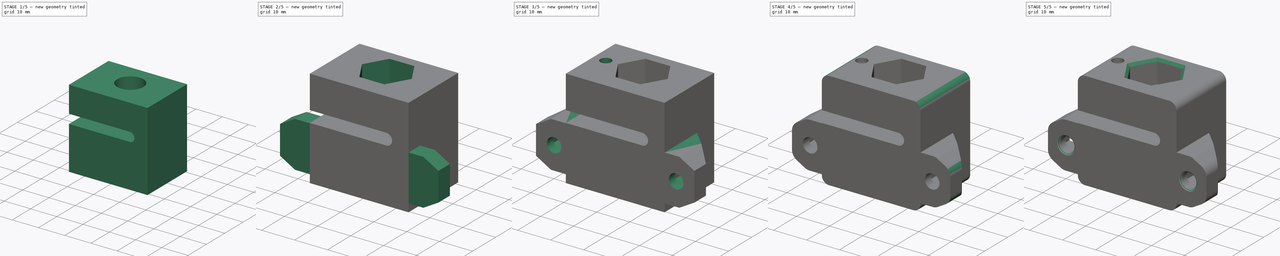
[diagram: build sequence overview — one tinted view per stage of 5, left to right]
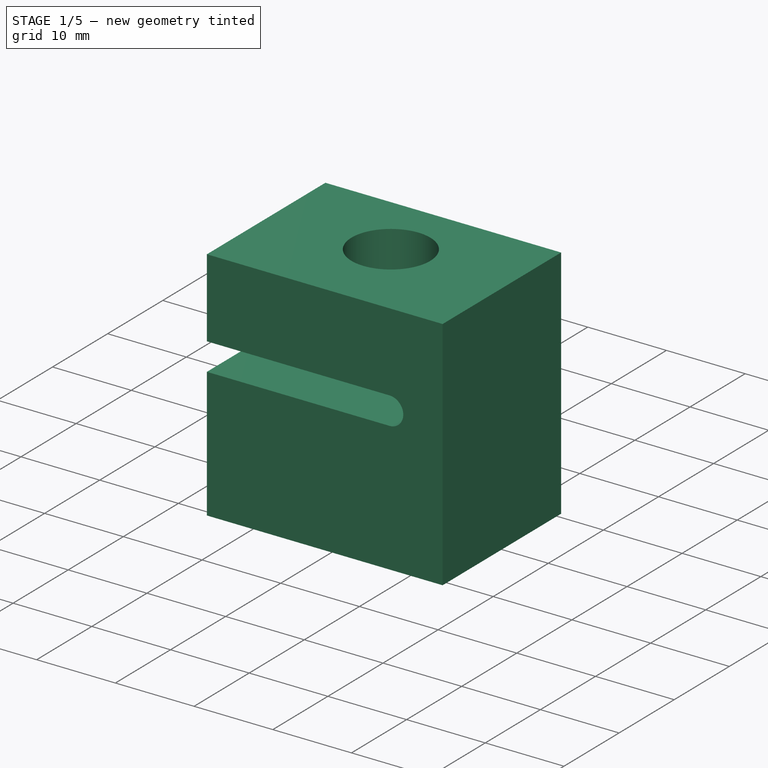
[diagram: stage 1 of 5 — iso view after this stage's code; geometry added in this stage tinted green]
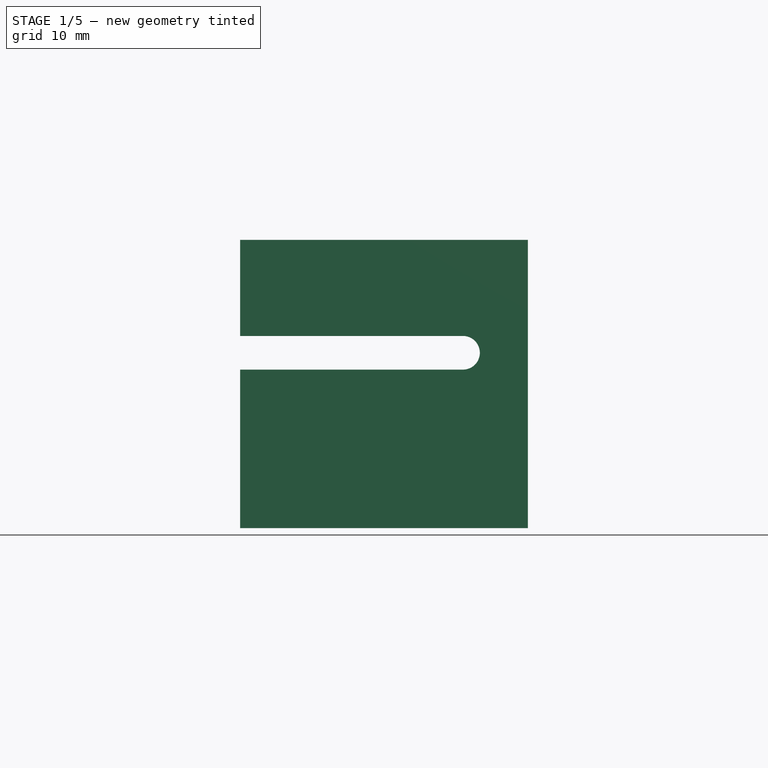
[diagram: stage 1 of 5 — front view after this stage's code; geometry added in this stage tinted green]
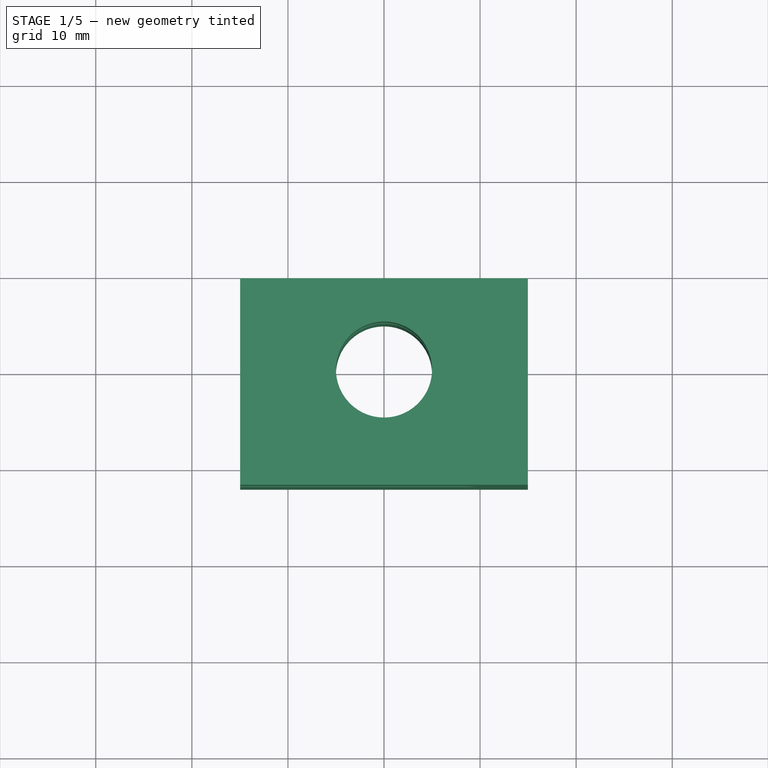
[diagram: stage 1 of 5 — top view after this stage's code; geometry added in this stage tinted green]
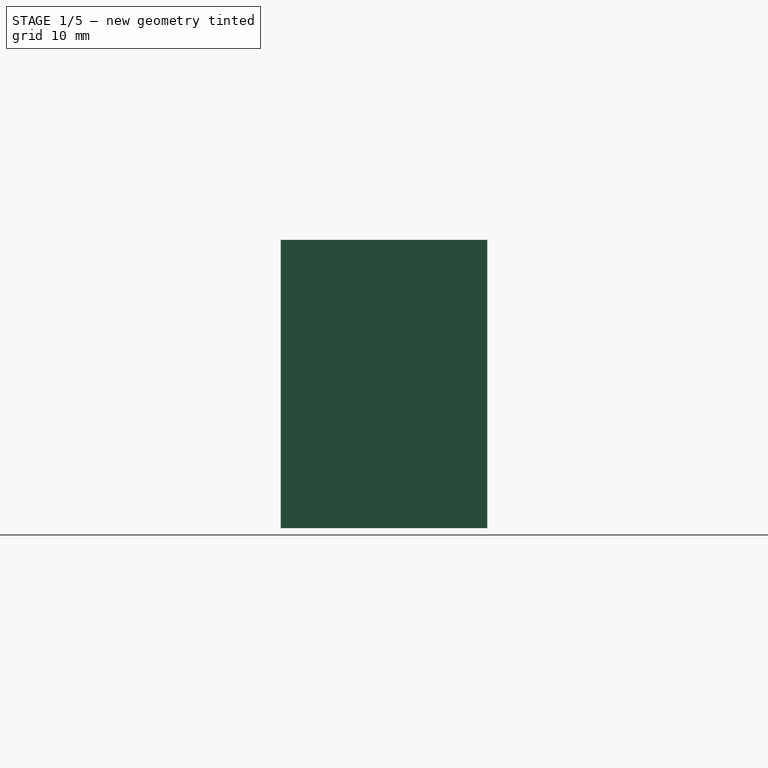
[diagram: stage 1 of 5 — right view after this stage's code; geometry added in this stage tinted green]
FCSTD DOCUMENT  (FreeCAD 0.17R13519 (Git))
Label: Backlash Nut Z-Axis
License: All rights reserved
LicenseURL: http://de.wikipedia.org/wiki/Alle_Rechte_vorbehalten
objects: Sketcher::SketchObject×10, PartDesign::Pocket×8, PartDesign::Chamfer×4, PartDesign::Pad×2, PartDesign::Fillet×2
note: 36 computed .brp shape members not serialized (recipe doc carries the construction recipe); baked Part::Feature solids carry a one-line shape summary decoded from their .brp

FEATURE [Sketcher::SketchObject] Sketch
  MapMode = 5
  sketch-geometry (12):
    g0: LineSegment [constr] StartX=-50 StartY=-12 StartZ=0 EndX=50 EndY=-12 EndZ=0
    g1: LineSegment [constr] StartX=3.75278 StartY=-6.5 StartZ=0 EndX=7.50555 EndY=0 EndZ=0
    g2: LineSegment [constr] StartX=7.50555 StartY=0 StartZ=0 EndX=3.75278 EndY=6.5 EndZ=0
    g3: LineSegment [constr] StartX=3.75278 StartY=6.5 StartZ=0 EndX=-3.75278 EndY=6.5 EndZ=0
    g4: LineSegment [constr] StartX=-3.75278 StartY=6.5 StartZ=0 EndX=-7.50555 EndY=0 EndZ=0
    g5: LineSegment [constr] StartX=-7.50555 StartY=0 StartZ=0 EndX=-3.75278 EndY=-6.5 EndZ=0
    g6: LineSegment [constr] StartX=-3.75278 StartY=-6.5 StartZ=0 EndX=3.75278 EndY=-6.5 EndZ=0
    g7: Circle [constr] CenterX=0 CenterY=0 CenterZ=0 NormalX=0 NormalY=0 NormalZ=1 AngleXU=0 Radius=7.50555
    g8: LineSegment StartX=-14.975 StartY=9.5 StartZ=0 EndX=14.975 EndY=9.5 EndZ=0
    g9: LineSegment StartX=14.975 StartY=9.5 StartZ=0 EndX=14.975 EndY=-12 EndZ=0
    g10: LineSegment StartX=14.975 StartY=-12 StartZ=0 EndX=-14.975 EndY=-12 EndZ=0
    g11: LineSegment StartX=-14.975 StartY=-12 StartZ=0 EndX=-14.975 EndY=9.5 EndZ=0
  constraints (31):
    c: DistanceY(g0,g-1) = 12
    c: Symmetric(g0,g0,g-2)
    c: DistanceX(g0,g0) = 100
    c: Coincident(g1,g2)
    c: Coincident(g2,g3)
    c: Coincident(g3,g4)
    c: Coincident(g4,g5)
    c: Coincident(g5,g6)
    c: Coincident(g6,g1)
    c: Equal(g1, g2-g6) x5
    c: PointOnObject(g1,g7)
    c: PointOnObject(g2,g7)
    c: PointOnObject(g3,g7)
    c: PointOnObject(g4,g7)
    c: PointOnObject(g5,g7)
    c: PointOnObject(g6,g7)
    c: Horizontal(g6)
    c: Coincident(g-1,g7)
    c: Distance(g1,g2) = 13
    c: Coincident(g8,g9)
    c: Coincident(g9,g10)
    c: Coincident(g10,g11)
    c: Coincident(g11,g8)
    c: Horizontal(g8)
    c: Horizontal(g10)
    c: Vertical(g9)
    c: Vertical(g11)
    c: Symmetric(g8,g8,g-2)
    c: PointOnObject(g9,g0)
    c: DistanceY(g2,g8) = 3
    c: DistanceX(g-1,g9) = 14.975
FEATURE [PartDesign::Pad] Pad
  Length = 30
  Length2 = 100
  Midplane = true
  Profile = -> Sketch
  Type = 0
FEATURE [Sketcher::SketchObject] Sketch001
  ExternalGeometry = -> [Pad]
  MapMode = 5
  Placement = pos=(0,9.5,0) rot=(0,0.707107,0.707107;3.14159rad)
  Support = -> [Pad]
  sketch-geometry (7):
    g0: LineSegment [constr] StartX=14.975 StartY=5 StartZ=0 EndX=-9.975 EndY=5 EndZ=0
    g1: LineSegment [constr] StartX=-9.975 StartY=5 StartZ=0 EndX=-9.975 EndY=1.5 EndZ=0
    g2: LineSegment [constr] StartX=-9.975 StartY=1.5 StartZ=0 EndX=14.975 EndY=1.5 EndZ=0
    g3: LineSegment StartX=14.975 StartY=1.5 StartZ=0 EndX=14.975 EndY=5 EndZ=0
    g4: ArcOfCircle CenterX=-8.225 CenterY=3.25 CenterZ=0 NormalX=0 NormalY=0 NormalZ=1 AngleXU=0 Radius=1.75 StartAngle=1.57079 EndAngle=4.7124
    g5: LineSegment StartX=14.975 StartY=5 StartZ=0 EndX=-8.22498 EndY=5 EndZ=0
    g6: LineSegment StartX=14.975 StartY=1.5 StartZ=0 EndX=-8.22498 EndY=1.5 EndZ=0
  constraints (21):
    c: Coincident(g0,g1)
    c: Coincident(g1,g2)
    c: Coincident(g2,g3)
    c: Coincident(g3,g0)
    c: Horizontal(g0)
    c: Horizontal(g2)
    c: Vertical(g1)
    c: Vertical(g3)
    c: DistanceX(g-3,g0) = 5
    c: DistanceY(g0,g-3) = 10
    c: PointOnObject(g-3,g3)
    c: DistanceY(g3,g3) = 3.5
    c: PointOnObject(g4,g0)
    c: PointOnObject(g4,g2)
    c: Tangent(g4,g0)
    c: Tangent(g4,g2)
    c: Coincident(g5,g0)
    c: Coincident(g6,g2)
    c: Coincident(g4,g6)
    c: Coincident(g4,g5)
    c: Tangent(g1,g4)
FEATURE [PartDesign::Pocket] Pocket
  Length = 5
  Length2 = 100
  Profile = -> Sketch001
  Type = 1
FEATURE [Sketcher::SketchObject] Sketch002
  MapMode = 5
  Placement = pos=(0,0,15) rot=(0,0,1;0rad)
  Support = -> [Pocket]
  sketch-geometry (1):
    g0: Circle CenterX=0 CenterY=0 CenterZ=0 NormalX=0 NormalY=0 NormalZ=1 AngleXU=0 Radius=5
  constraints (2):
    c: Coincident(g0,g-1)
    c: Radius(g0) = 5
FEATURE [PartDesign::Pocket] Pocket001
  Length = 5
  Length2 = 100
  Profile = -> Sketch002
  Type = 1
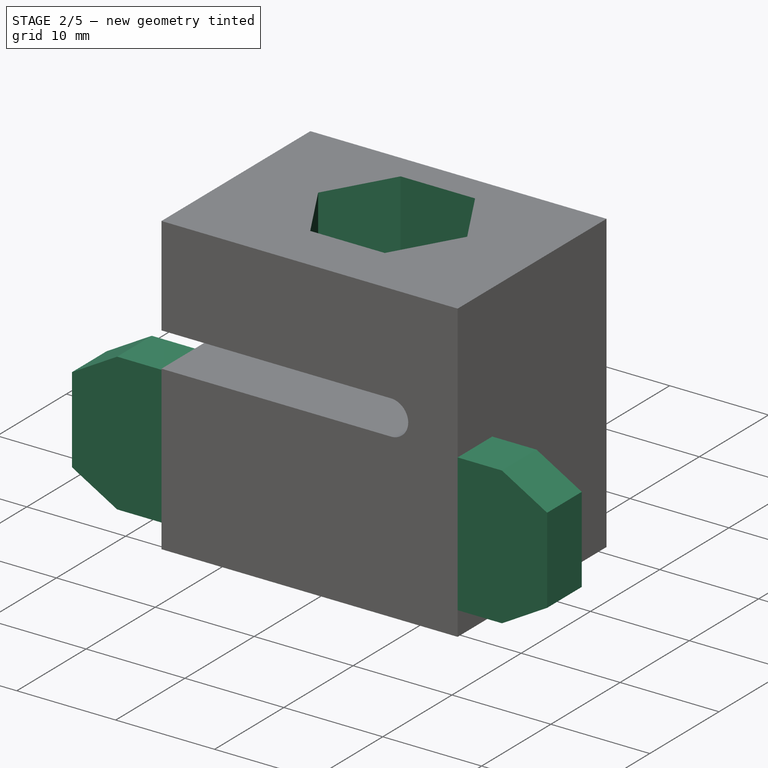
[diagram: stage 2 of 5 — iso view after this stage's code; geometry added in this stage tinted green]
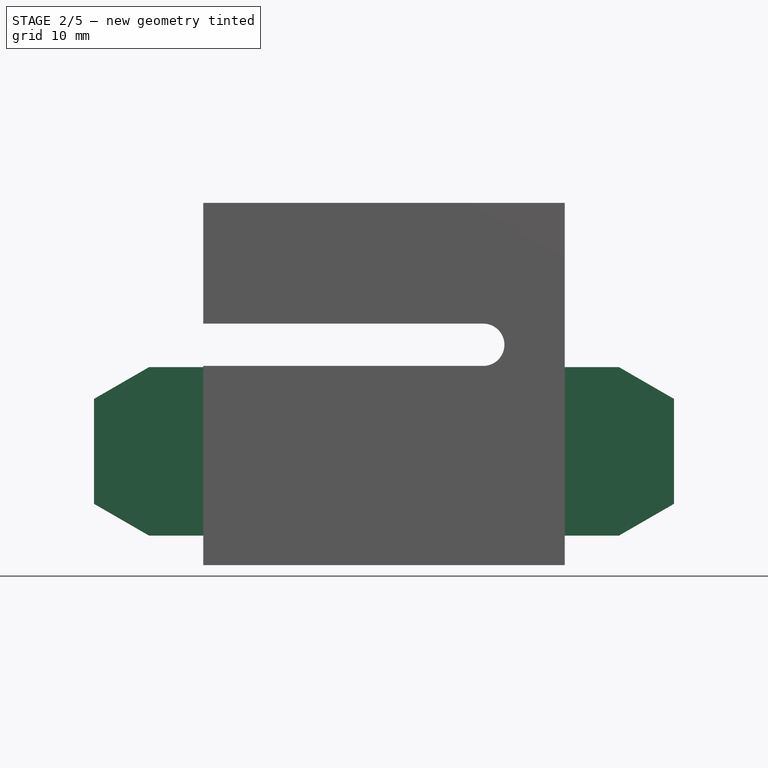
[diagram: stage 2 of 5 — front view after this stage's code; geometry added in this stage tinted green]
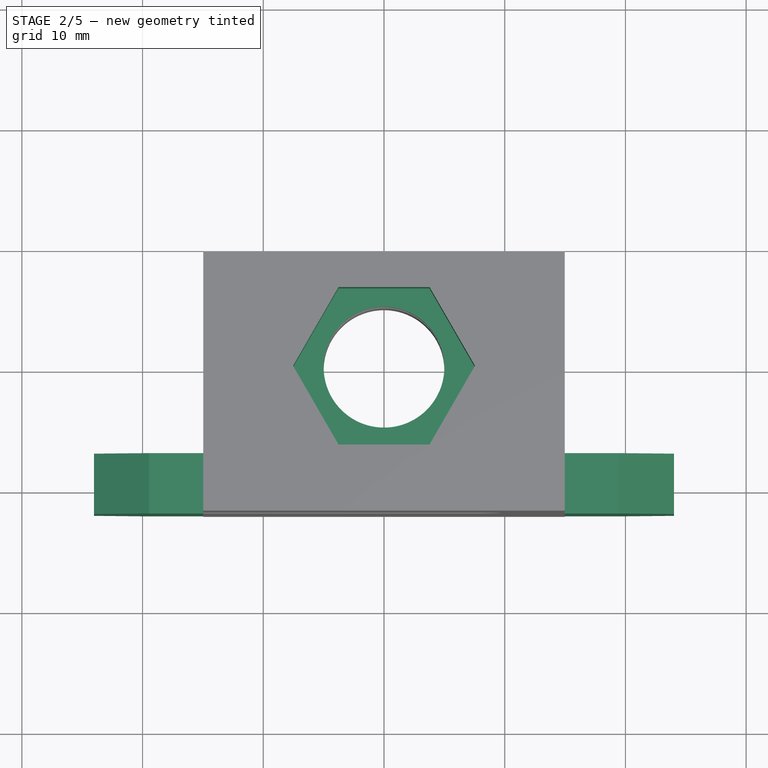
[diagram: stage 2 of 5 — top view after this stage's code; geometry added in this stage tinted green]
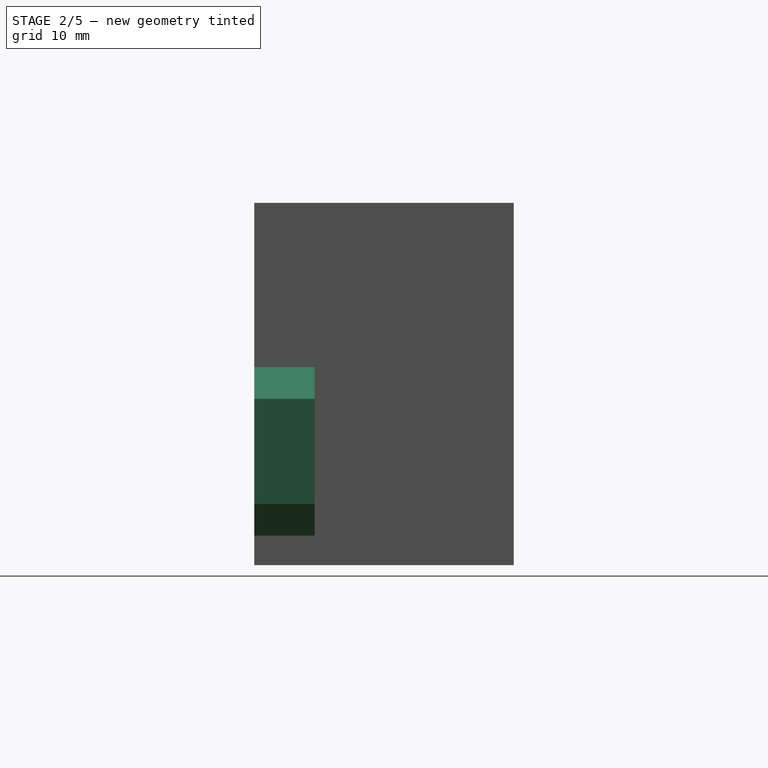
[diagram: stage 2 of 5 — right view after this stage's code; geometry added in this stage tinted green]
FEATURE [Sketcher::SketchObject] Sketch003
  MapMode = 5
  Placement = pos=(0,0,15) rot=(0,0,1;0rad)
  Support = -> [Pocket001]
  sketch-geometry (7):
    g0: LineSegment StartX=7.53442 StartY=-1e-12 StartZ=0 EndX=3.76721 EndY=6.525 EndZ=0
    g1: LineSegment StartX=3.76721 StartY=6.525 StartZ=0 EndX=-3.76721 EndY=6.525 EndZ=0
    g2: LineSegment StartX=-3.76721 StartY=6.525 StartZ=0 EndX=-7.53442 EndY=-1e-12 EndZ=0
    g3: LineSegment StartX=-7.53442 StartY=-1e-12 StartZ=0 EndX=-3.76721 EndY=-6.525 EndZ=0
    g4: LineSegment StartX=-3.76721 StartY=-6.525 StartZ=0 EndX=3.76721 EndY=-6.525 EndZ=0
    g5: LineSegment StartX=3.76721 StartY=-6.525 StartZ=0 EndX=7.53442 EndY=-1e-12 EndZ=0
    g6: Circle [constr] CenterX=0 CenterY=0 CenterZ=0 NormalX=0 NormalY=0 NormalZ=1 AngleXU=0 Radius=7.53442
  constraints (16):
    c: Coincident(g0,g1)
    c: Coincident(g1,g2)
    c: Coincident(g2,g3)
    c: Coincident(g3,g4)
    c: Coincident(g4,g5)
    c: Coincident(g5,g0)
    c: Equal(g0, g1-g5) x5
    c: PointOnObject(g0,g6)
    c: PointOnObject(g1,g6)
    c: PointOnObject(g2,g6)
    c: PointOnObject(g3,g6)
    c: PointOnObject(g4,g6)
    c: PointOnObject(g5,g6)
    c: Coincident(g6,g-1)
    c: Horizontal(g4)
    c: Distance(g4,g0) = 13.05
FEATURE [PartDesign::Pocket] Pocket002
  Length = 7
  Length2 = 100
  Profile = -> Sketch003
  Type = 0
FEATURE [Sketcher::SketchObject] Sketch004
  MapMode = 5
  Placement = pos=(0,0,-15) rot=(1,0,0;3.14159rad)
  Support = -> [Pocket002]
  sketch-geometry (7):
    g0: LineSegment StartX=7.53442 StartY=0 StartZ=0 EndX=3.76721 EndY=6.525 EndZ=0
    g1: LineSegment StartX=3.76721 StartY=6.525 StartZ=0 EndX=-3.76721 EndY=6.525 EndZ=0
    g2: LineSegment StartX=-3.76721 StartY=6.525 StartZ=0 EndX=-7.53442 EndY=0 EndZ=0
    g3: LineSegment StartX=-7.53442 StartY=0 StartZ=0 EndX=-3.76721 EndY=-6.525 EndZ=0
    g4: LineSegment StartX=-3.76721 StartY=-6.525 StartZ=0 EndX=3.76721 EndY=-6.525 EndZ=0
    g5: LineSegment StartX=3.76721 StartY=-6.525 StartZ=0 EndX=7.53442 EndY=0 EndZ=0
    g6: Circle [constr] CenterX=0 CenterY=0 CenterZ=0 NormalX=0 NormalY=0 NormalZ=1 AngleXU=0 Radius=7.53442
  constraints (16):
    c: Coincident(g0,g1)
    c: Coincident(g1,g2)
    c: Coincident(g2,g3)
    c: Coincident(g3,g4)
    c: Coincident(g4,g5)
    c: Coincident(g5,g0)
    c: Equal(g0, g1-g5) x5
    c: PointOnObject(g0,g6)
    c: PointOnObject(g1,g6)
    c: PointOnObject(g2,g6)
    c: PointOnObject(g3,g6)
    c: PointOnObject(g4,g6)
    c: PointOnObject(g5,g6)
    c: Horizontal(g4)
    c: Coincident(g6,g-1)
    c: Distance(g4,g0) = 13.05
FEATURE [PartDesign::Pocket] Pocket003
  Length = 7
  Length2 = 100
  Profile = -> Sketch004
  Type = 0
FEATURE [Sketcher::SketchObject] Sketch005
  ExternalGeometry = -> [Pocket003]
  MapMode = 5
  Placement = pos=(0,-12,0) rot=(1,0,0;1.5708rad)
  Support = -> [Pocket003]
  sketch-geometry (21):
    g0: LineSegment [constr] StartX=-22.025 StartY=-7.61548 StartZ=0 EndX=-18.5 EndY=-9.65064 EndZ=0
    g1: LineSegment [constr] StartX=-18.5 StartY=-9.65064 StartZ=0 EndX=-14.975 EndY=-7.61548 EndZ=0
    g2: LineSegment [constr] StartX=-14.975 StartY=-7.61548 StartZ=0 EndX=-14.975 EndY=-3.54516 EndZ=0
    g3: LineSegment [constr] StartX=-14.975 StartY=-3.54516 StartZ=0 EndX=-18.5 EndY=-1.51 EndZ=0
    g4: LineSegment [constr] StartX=-18.5 StartY=-1.51 StartZ=0 EndX=-22.025 EndY=-3.54516 EndZ=0
    g5: LineSegment [constr] StartX=-22.025 StartY=-3.54516 StartZ=0 EndX=-22.025 EndY=-7.61548 EndZ=0
    g6: Circle [constr] CenterX=-18.5 CenterY=-5.58032 CenterZ=0 NormalX=0 NormalY=0 NormalZ=1 AngleXU=0 Radius=4.07032
    g7: LineSegment StartX=-14.975 StartY=1.4 StartZ=0 EndX=-19.4597 EndY=1.4 EndZ=0
    g8: LineSegment StartX=-19.4597 StartY=1.4 StartZ=0 EndX=-24.025 EndY=-1.23576 EndZ=0
    g9: LineSegment StartX=-24.025 StartY=-1.23576 StartZ=0 EndX=-24.025 EndY=-9.92488 EndZ=0
    g10: LineSegment StartX=-24.025 StartY=-9.92488 StartZ=0 EndX=-19.4597 EndY=-12.5606 EndZ=0
    g11: LineSegment StartX=-19.4597 StartY=-12.5606 StartZ=0 EndX=-14.975 EndY=-12.5606 EndZ=0
    g12: LineSegment StartX=-14.975 StartY=-12.5606 StartZ=0 EndX=-14.975 EndY=1.4 EndZ=0
    g13: LineSegment [constr] StartX=-20 StartY=1.08808 StartZ=0 EndX=-18.5 EndY=-1.51 EndZ=0
    g14: LineSegment [constr] StartX=-24.025 StartY=-5.58032 StartZ=0 EndX=-22.025 EndY=-5.58032 EndZ=0
    g15: LineSegment StartX=14.975 StartY=1.4 StartZ=0 EndX=14.975 EndY=-12.5606 EndZ=0
    g16: LineSegment StartX=14.975 StartY=-12.5606 StartZ=0 EndX=19.4597 EndY=-12.5606 EndZ=0
    g17: LineSegment StartX=19.4597 StartY=-12.5606 StartZ=0 EndX=24.025 EndY=-9.92488 EndZ=0
    g18: LineSegment StartX=24.025 StartY=-9.92488 StartZ=0 EndX=24.025 EndY=-1.23576 EndZ=0
    g19: LineSegment StartX=24.025 StartY=-1.23576 StartZ=0 EndX=19.4597 EndY=1.4 EndZ=0
    g20: LineSegment StartX=19.4597 StartY=1.4 StartZ=0 EndX=14.975 EndY=1.4 EndZ=0
  constraints (58):
    c: Coincident(g0,g1)
    c: Coincident(g1,g2)
    c: Coincident(g2,g3)
    c: Coincident(g3,g4)
    c: Coincident(g4,g5)
    c: Coincident(g5,g0)
    c: Equal(g0, g1-g5) x5
    c: PointOnObject(g0,g6)
    c: PointOnObject(g1,g6)
    c: PointOnObject(g2,g6)
    c: PointOnObject(g3,g6)
    c: PointOnObject(g4,g6)
    c: PointOnObject(g5,g6)
    c: Vertical(g2)
    c: Distance(g1,g0) = 7.05
    c: DistanceY(g3,g-3) = 3.01
    c: DistanceX(g6,g-1) = 18.5
    c: Coincident(g7,g8)
    c: Coincident(g8,g9)
    c: Vertical(g9)
    c: Coincident(g9,g10)
    c: Coincident(g10,g11)
    c: Coincident(g11,g12)
    c: Parallel(g0,g10)
    c: Parallel(g4,g8)
    c: Horizontal(g7)
    c: Horizontal(g11)
    c: Coincident(g13,g3)
    c: PointOnObject(g13,g8)
    c: Distance(g13) = 3
    c: Perpendicular(g8,g13)
    c: PointOnObject(g14,g5)
    c: PointOnObject(g14,g9)
    c: PointOnObject(g6,g14)
    c: Horizontal(g14)
    c: Symmetric(g7,g10,g14)
    c: Vertical(g12)
    c: Vertical(g15)
    c: Coincident(g15,g16)
    c: Horizontal(g16)
    c: Coincident(g16,g17)
    c: Coincident(g17,g18)
    c: Vertical(g18)
    c: Coincident(g18,g19)
    c: Coincident(g19,g20)
    c: Horizontal(g20)
    c: Coincident(g15,g20)
    c: Parallel(g10,g19)
    c: Parallel(g8,g17)
    c: Equal(g16,g11)
    c: Equal(g20,g16)
    c: Equal(g9,g18)
    c: Symmetric(g11,g15,g-2)
    c: Equal(g12,g15)
    c: Coincident(g7,g12)
    c: DistanceY(g7,g-3) = 0.1
    c: PointOnObject(g7,g-3)
    c: DistanceX(g14,g14) = 2
FEATURE [PartDesign::Pad] Pad001
  Length = 5
  Length2 = 100
  Profile = -> Sketch005
  Reversed = true
  Type = 0
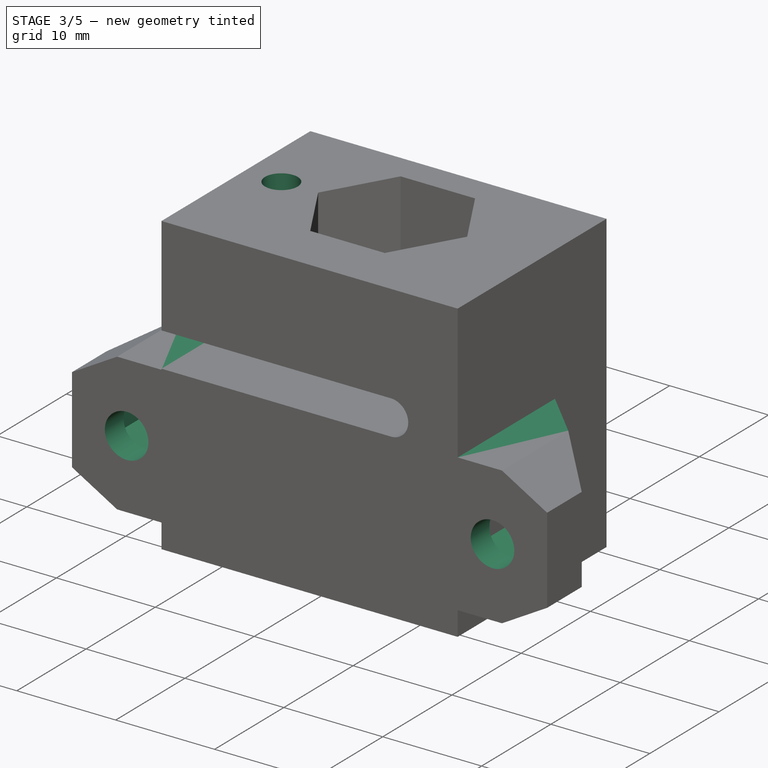
[diagram: stage 3 of 5 — iso view after this stage's code; geometry added in this stage tinted green]
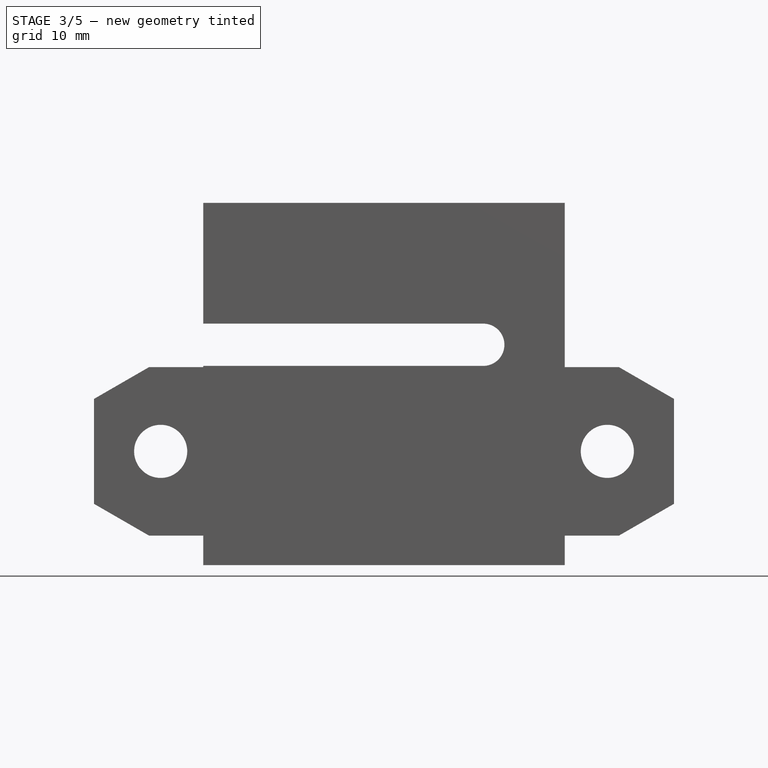
[diagram: stage 3 of 5 — front view after this stage's code; geometry added in this stage tinted green]
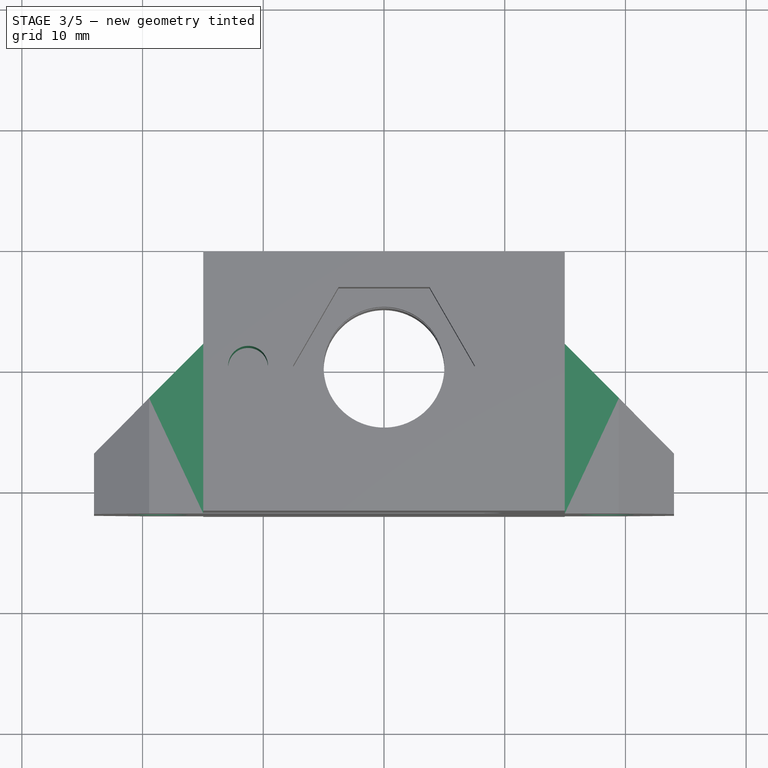
[diagram: stage 3 of 5 — top view after this stage's code; geometry added in this stage tinted green]
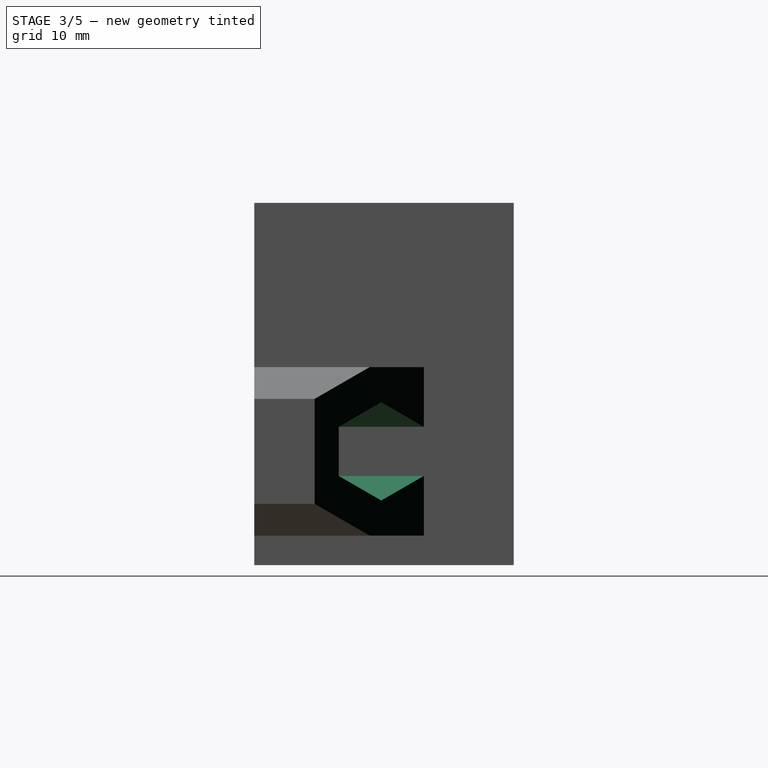
[diagram: stage 3 of 5 — right view after this stage's code; geometry added in this stage tinted green]
FEATURE [PartDesign::Chamfer] Chamfer
  Base = -> Pad001 [Edge44,Edge20]
  Size = 9.049
FEATURE [Sketcher::SketchObject] Sketch006
  ExternalGeometry = -> [Chamfer]
  MapMode = 5
  Placement = pos=(0,9.5,0) rot=(0,0.707107,0.707107;3.14159rad)
  Support = -> [Chamfer]
  sketch-geometry (14):
    g0: LineSegment StartX=22.025 StartY=-7.61548 StartZ=0 EndX=22.025 EndY=-3.54516 EndZ=0
    g1: LineSegment StartX=22.025 StartY=-3.54516 StartZ=0 EndX=18.5 EndY=-1.51 EndZ=0
    g2: LineSegment StartX=18.5 StartY=-1.51 StartZ=0 EndX=14.975 EndY=-3.54516 EndZ=0
    g3: LineSegment StartX=14.975 StartY=-3.54516 StartZ=0 EndX=14.975 EndY=-7.61548 EndZ=0
    g4: LineSegment StartX=14.975 StartY=-7.61548 StartZ=0 EndX=18.5 EndY=-9.65064 EndZ=0
    g5: LineSegment StartX=18.5 StartY=-9.65064 StartZ=0 EndX=22.025 EndY=-7.61548 EndZ=0
    g6: Circle [constr] CenterX=18.5 CenterY=-5.58032 CenterZ=0 NormalX=0 NormalY=0 NormalZ=1 AngleXU=0 Radius=4.07032
    g7: LineSegment StartX=-18.5 StartY=-9.65064 StartZ=0 EndX=-14.975 EndY=-7.61548 EndZ=0
    g8: LineSegment StartX=-14.975 StartY=-7.61548 StartZ=0 EndX=-14.975 EndY=-3.54516 EndZ=0
    g9: LineSegment StartX=-14.975 StartY=-3.54516 StartZ=0 EndX=-18.5 EndY=-1.51 EndZ=0
    g10: LineSegment StartX=-18.5 StartY=-1.51 StartZ=0 EndX=-22.025 EndY=-3.54516 EndZ=0
    g11: LineSegment StartX=-22.025 StartY=-3.54516 StartZ=0 EndX=-22.025 EndY=-7.61548 EndZ=0
    g12: LineSegment StartX=-22.025 StartY=-7.61548 StartZ=0 EndX=-18.5 EndY=-9.65064 EndZ=0
    g13: Circle [constr] CenterX=-18.5 CenterY=-5.58032 CenterZ=0 NormalX=0 NormalY=0 NormalZ=1 AngleXU=0 Radius=4.07032
  constraints (33):
    c: Coincident(g0,g1)
    c: Coincident(g1,g2)
    c: Coincident(g2,g3)
    c: Coincident(g3,g4)
    c: Coincident(g4,g5)
    c: Coincident(g5,g0)
    c: Equal(g0, g1-g5) x5
    c: PointOnObject(g0,g6)
    c: PointOnObject(g1,g6)
    c: PointOnObject(g2,g6)
    c: PointOnObject(g3,g6)
    c: PointOnObject(g4,g6)
    c: PointOnObject(g5,g6)
    c: DistanceY(g6,g-3) = 7.08032
    c: Vertical(g0)
    c: Distance(g2,g0) = 7.05
    c: PointOnObject(g3,g-3)
    c: Coincident(g7,g8)
    c: Coincident(g8,g9)
    c: Coincident(g9,g10)
    c: Coincident(g10,g11)
    c: Coincident(g11,g12)
    c: Coincident(g12,g7)
    c: Equal(g7, g8-g12) x5
    c: PointOnObject(g7,g13)
    c: PointOnObject(g8,g13)
    c: PointOnObject(g9,g13)
    c: PointOnObject(g10,g13)
    c: PointOnObject(g11,g13)
    c: PointOnObject(g12,g13)
    c: Equal(g13,g6)
    c: Vertical(g8)
    c: Symmetric(g8,g2,g-2)
FEATURE [PartDesign::Pocket] Pocket004
  Length = 18.8
  Length2 = 100
  Profile = -> Sketch006
  Type = 0
FEATURE [Sketcher::SketchObject] Sketch007
  ExternalGeometry = -> [Pocket004]
  MapMode = 5
  Placement = pos=(0,-9.3,0) rot=(0,0.707107,0.707107;3.14159rad)
  Support = -> [Pocket004]
  sketch-geometry (4):
    g0: LineSegment [constr] StartX=-14.975 StartY=-3.54516 StartZ=0 EndX=-22.025 EndY=-7.61548 EndZ=0
    g1: LineSegment [constr] StartX=-22.025 StartY=-3.54516 StartZ=0 EndX=-14.975 EndY=-7.61548 EndZ=0
    g2: Circle CenterX=-18.5 CenterY=-5.58032 CenterZ=0 NormalX=0 NormalY=0 NormalZ=1 AngleXU=0 Radius=2.2
    g3: Circle CenterX=18.5 CenterY=-5.58032 CenterZ=0 NormalX=0 NormalY=0 NormalZ=1 AngleXU=0 Radius=2.2
  constraints (9):
    c: Coincident(g0,g-3)
    c: Coincident(g0,g-4)
    c: Coincident(g1,g-4)
    c: Symmetric(g3,g2,g-2)
    c: PointOnObject(g2,g0)
    c: PointOnObject(g2,g1)
    c: Coincident(g1,g-3)
    c: Radius(g3) = 2.2
    c: Equal(g3,g2)
FEATURE [PartDesign::Pocket] Pocket005
  Length = 5
  Length2 = 100
  Profile = -> Sketch007
  Type = 1
FEATURE [Sketcher::SketchObject] Sketch008
  ExternalGeometry = -> [Pocket005]
  MapMode = 5
  Placement = pos=(0,0,15) rot=(0,0,1;0rad)
  Support = -> [Pocket005]
  sketch-geometry (3):
    g0: LineSegment [constr] StartX=-14.975 StartY=-1e-12 StartZ=0 EndX=-11.2547 EndY=-1e-12 EndZ=0
    g1: LineSegment [constr] StartX=-11.2547 StartY=-1e-12 StartZ=0 EndX=-7.53442 EndY=-1e-12 EndZ=0
    g2: Circle CenterX=-11.2547 CenterY=-1e-12 CenterZ=0 NormalX=0 NormalY=0 NormalZ=1 AngleXU=0 Radius=1.65
  constraints (8):
    c: Coincident(g0,g1)
    c: Horizontal(g1)
    c: Equal(g1,g0)
    c: Horizontal(g0)
    c: Coincident(g1,g-3)
    c: PointOnObject(g0,g-4)
    c: Coincident(g2,g0)
    c: Radius(g2) = 1.65
FEATURE [PartDesign::Pocket] Pocket006
  Length = 0
  Length2 = 100
  Profile = -> Sketch008
  Type = 3
  UpToFace = -> Pocket005 [Face26]
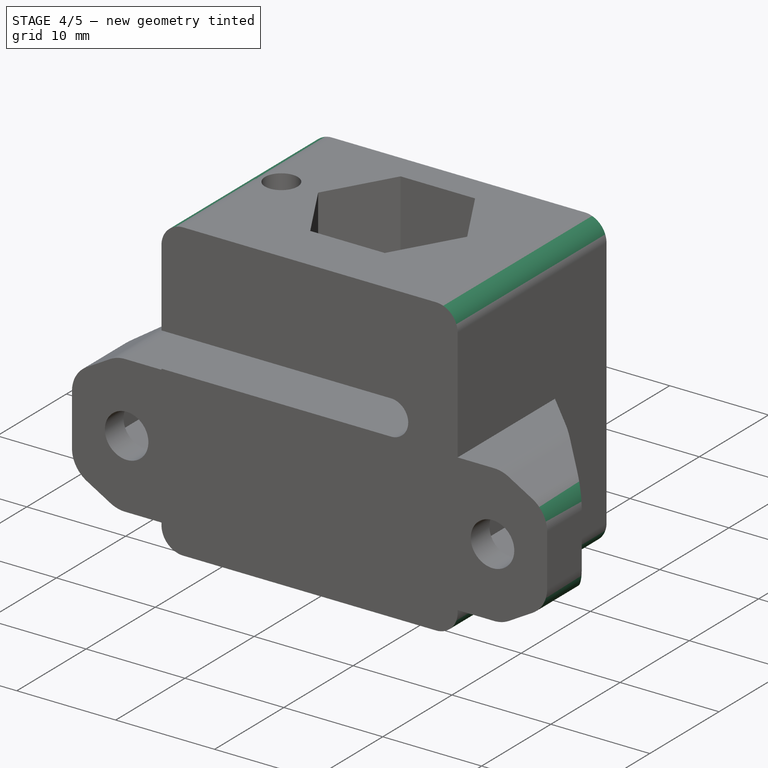
[diagram: stage 4 of 5 — iso view after this stage's code; geometry added in this stage tinted green]
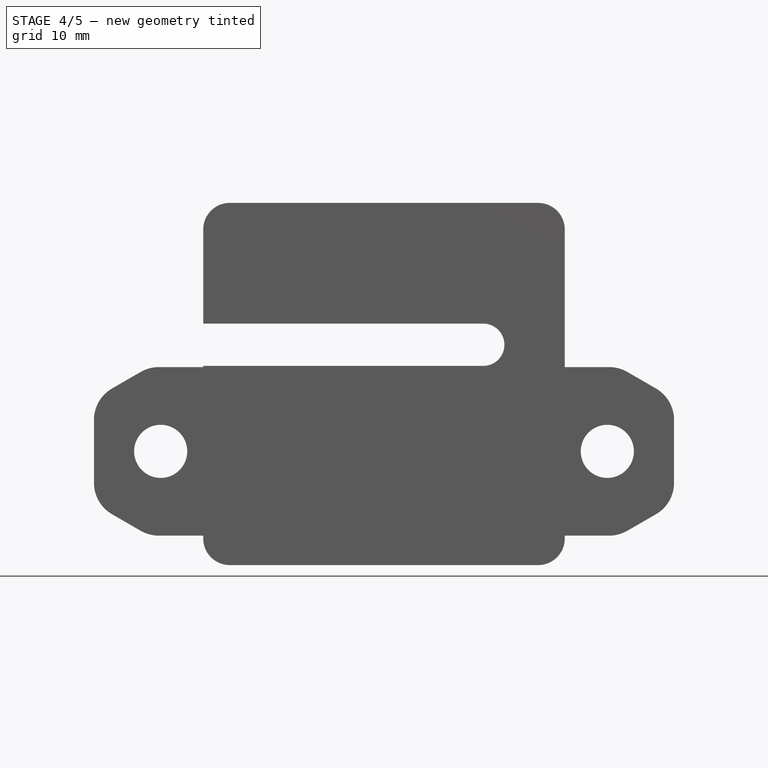
[diagram: stage 4 of 5 — front view after this stage's code; geometry added in this stage tinted green]
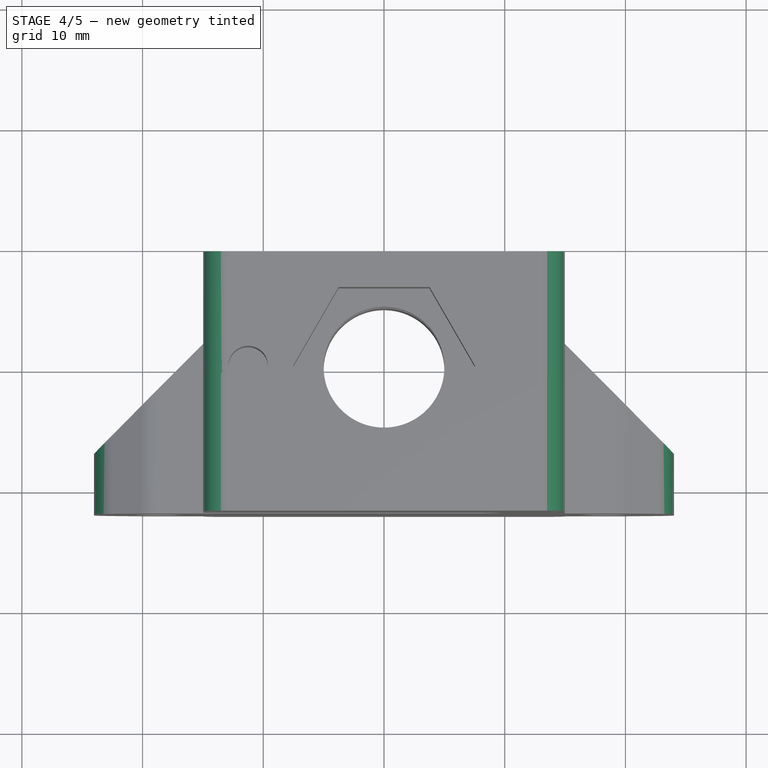
[diagram: stage 4 of 5 — top view after this stage's code; geometry added in this stage tinted green]
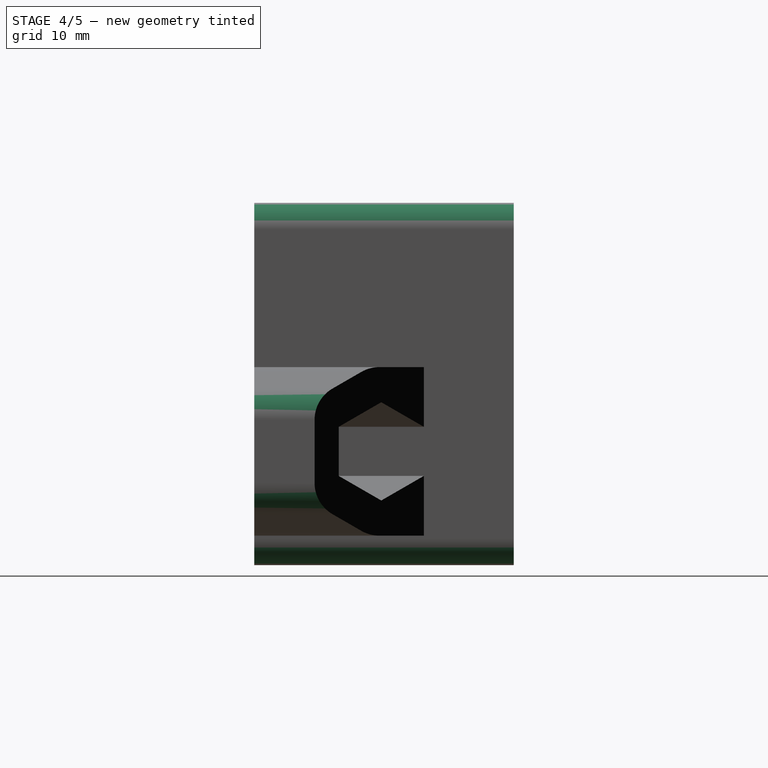
[diagram: stage 4 of 5 — right view after this stage's code; geometry added in this stage tinted green]
FEATURE [Sketcher::SketchObject] Sketch009
  ExternalGeometry = -> [Pocket006]
  MapMode = 5
  Placement = pos=(1.7e-11,0,5) rot=(1,0,0;3.14159rad)
  Support = -> [Pocket006]
  sketch-geometry (7):
    g0: LineSegment StartX=-9.65256 StartY=-2.775 StartZ=0 EndX=-8.05042 EndY=0 EndZ=0
    g1: LineSegment StartX=-8.05042 StartY=0 StartZ=0 EndX=-9.65256 EndY=2.775 EndZ=0
    g2: LineSegment StartX=-9.65256 StartY=2.775 StartZ=0 EndX=-12.8569 EndY=2.775 EndZ=0
    g3: LineSegment StartX=-12.8569 StartY=2.775 StartZ=0 EndX=-14.459 EndY=0 EndZ=0
    g4: LineSegment StartX=-14.459 StartY=0 StartZ=0 EndX=-12.8569 EndY=-2.775 EndZ=0
    g5: LineSegment StartX=-12.8569 StartY=-2.775 StartZ=0 EndX=-9.65256 EndY=-2.775 EndZ=0
    g6: Circle [constr] CenterX=-11.2547 CenterY=1e-12 CenterZ=0 NormalX=0 NormalY=0 NormalZ=1 AngleXU=0 Radius=3.20429
  constraints (16):
    c: Coincident(g0,g1)
    c: Coincident(g1,g2)
    c: Coincident(g2,g3)
    c: Coincident(g3,g4)
    c: Coincident(g4,g5)
    c: Coincident(g5,g0)
    c: Equal(g0, g1-g5) x5
    c: PointOnObject(g0,g6)
    c: PointOnObject(g1,g6)
    c: PointOnObject(g2,g6)
    c: PointOnObject(g3,g6)
    c: PointOnObject(g4,g6)
    c: PointOnObject(g5,g6)
    c: Coincident(g6,g-3)
    c: Horizontal(g5)
    c: Distance(g1,g0) = 5.55
FEATURE [PartDesign::Pocket] Pocket007
  Length = 3
  Length2 = 100
  Profile = -> Sketch009
  Type = 0
FEATURE [PartDesign::Fillet] Fillet
  Base = -> Pocket007 [Edge31,Edge4,Edge84,Edge72]
  Radius = 2.2
FEATURE [PartDesign::Fillet] Fillet001
  Base = -> Fillet [Edge117,Edge52,Edge114,Edge139,Edge189,Edge188,Edge153,Edge112]
  Radius = 3
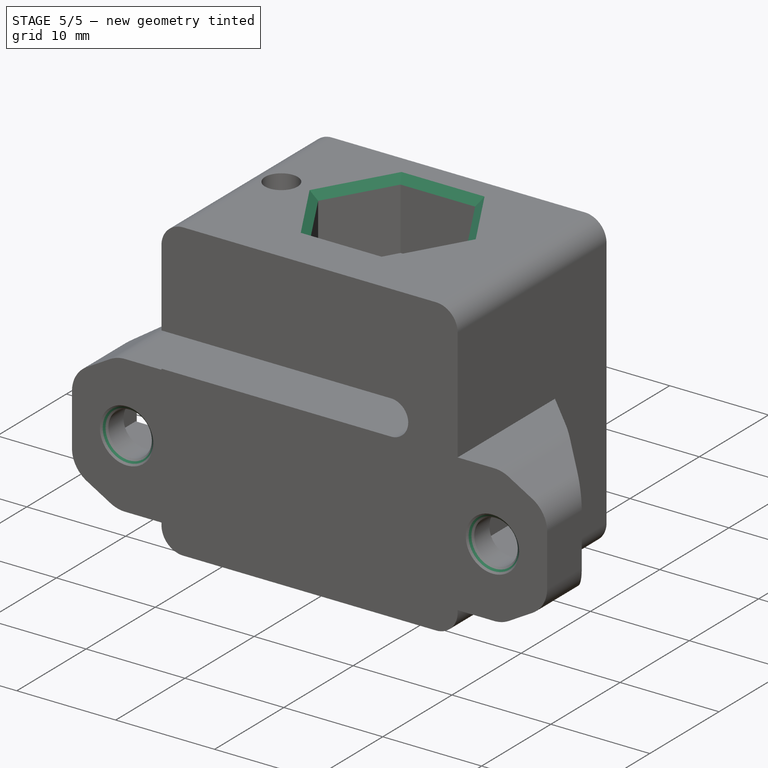
[diagram: stage 5 of 5 — iso view after this stage's code; geometry added in this stage tinted green]
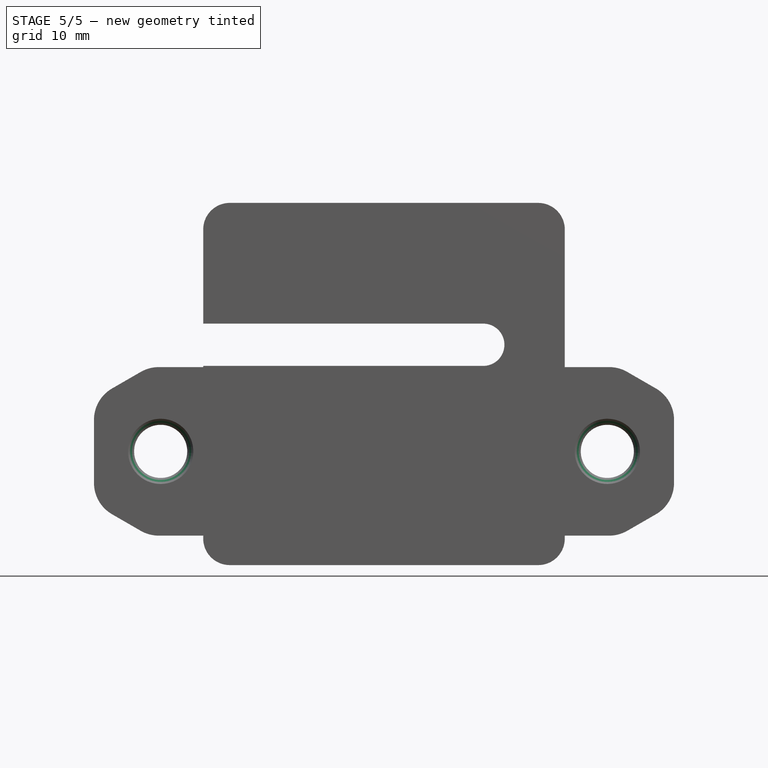
[diagram: stage 5 of 5 — front view after this stage's code; geometry added in this stage tinted green]
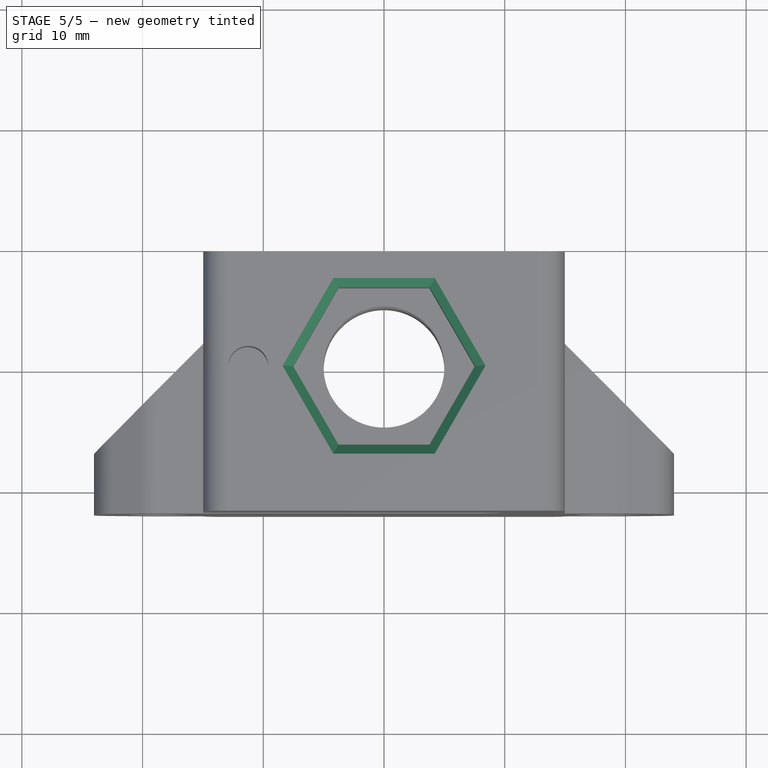
[diagram: stage 5 of 5 — top view after this stage's code; geometry added in this stage tinted green]
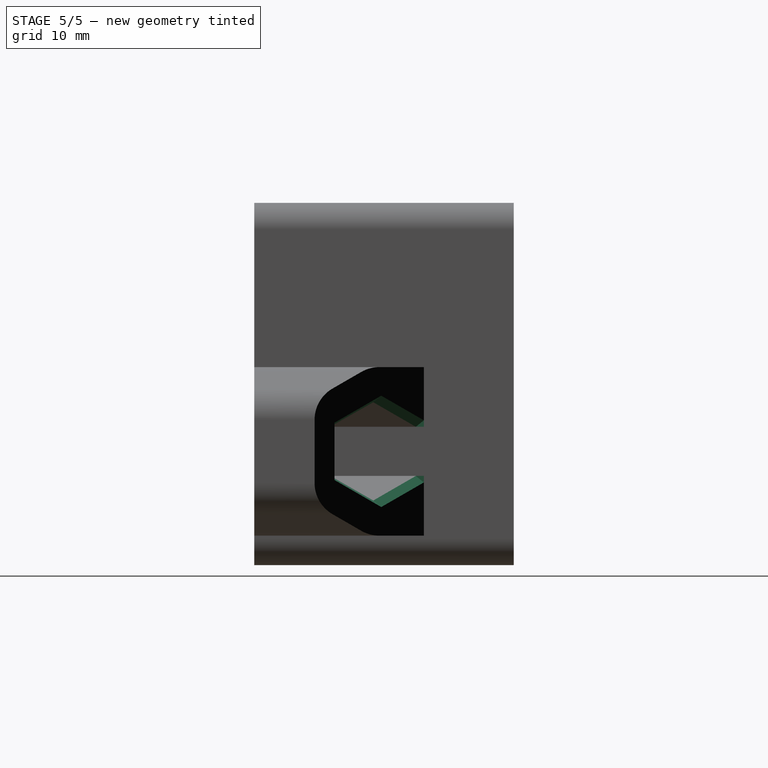
[diagram: stage 5 of 5 — right view after this stage's code; geometry added in this stage tinted green]
FEATURE [PartDesign::Chamfer] Chamfer001
  Base = -> Fillet001 [Edge94,Edge95,Edge97,Edge99,Edge98,Edge96,Edge124,Edge125,Edge127,Edge129,Edge128,Edge126]
  Size = 0.75
FEATURE [PartDesign::Chamfer] Chamfer002
  Base = -> Chamfer001 [Edge135,Edge143,Edge141,Edge137,Edge139,Edge149,Edge157,Edge155,Edge153,Edge151]
  Size = 0.5
FEATURE [PartDesign::Chamfer] Chamfer003
  Base = -> Chamfer002 [Edge103,Edge125]
  Size = 0.5
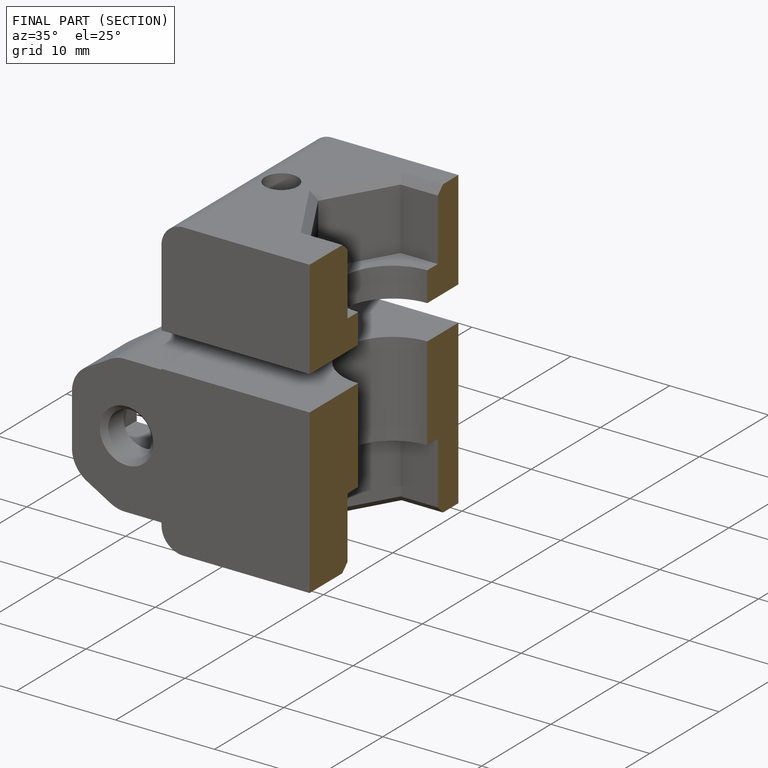
[diagram: finished part — half-section view (interior)]
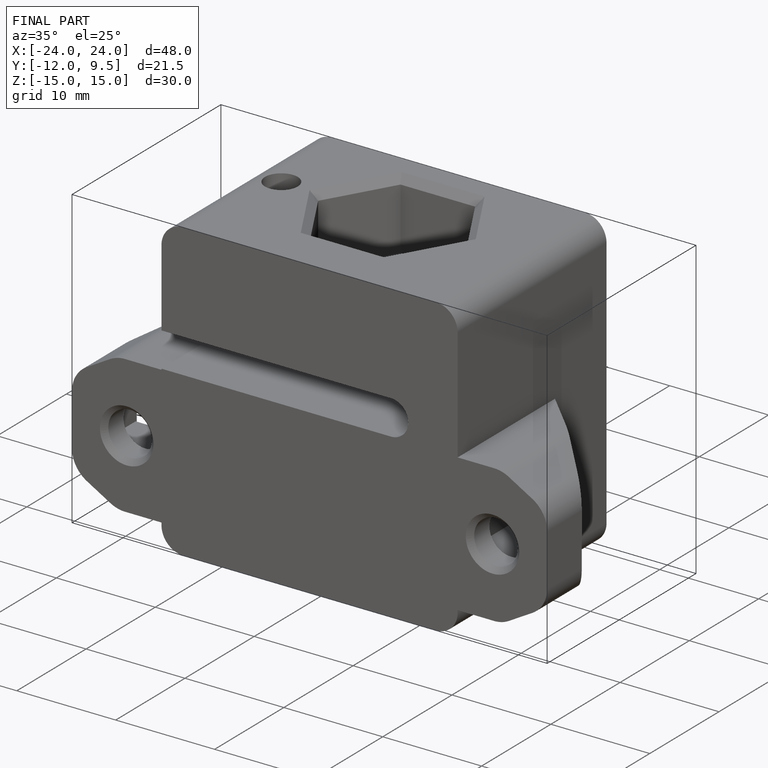
[diagram: finished part — iso view with bounding-box wireframe]
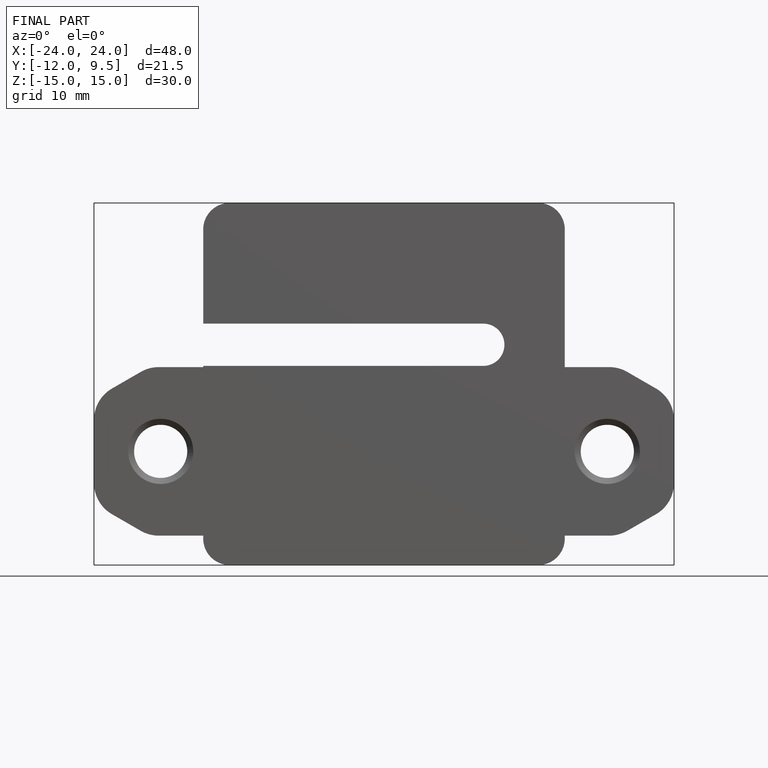
[diagram: finished part — front view with bounding-box wireframe]
